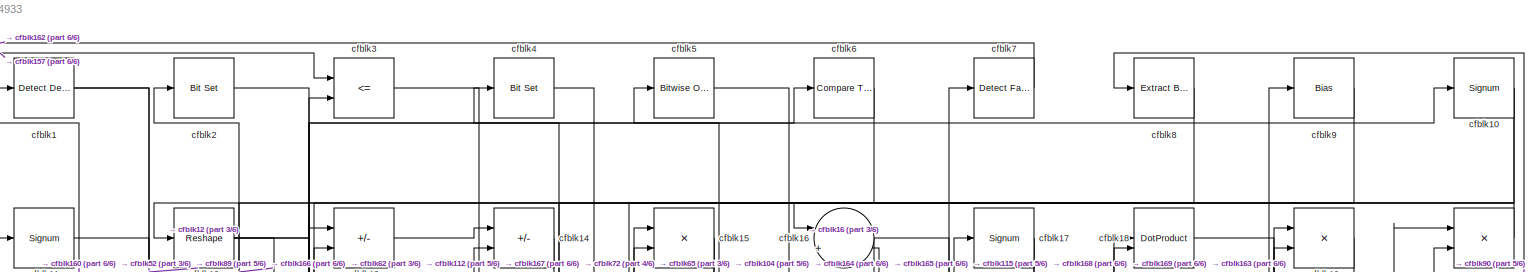
[diagram: root canvas - part 1/6, full width, top band]
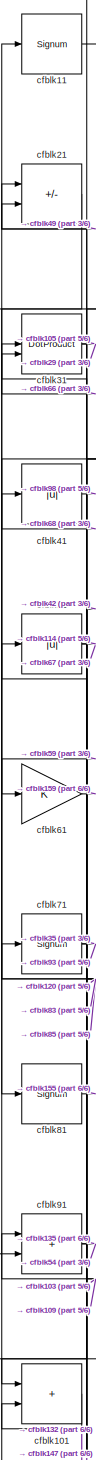
[diagram: root canvas - part 2/6, middle left region]
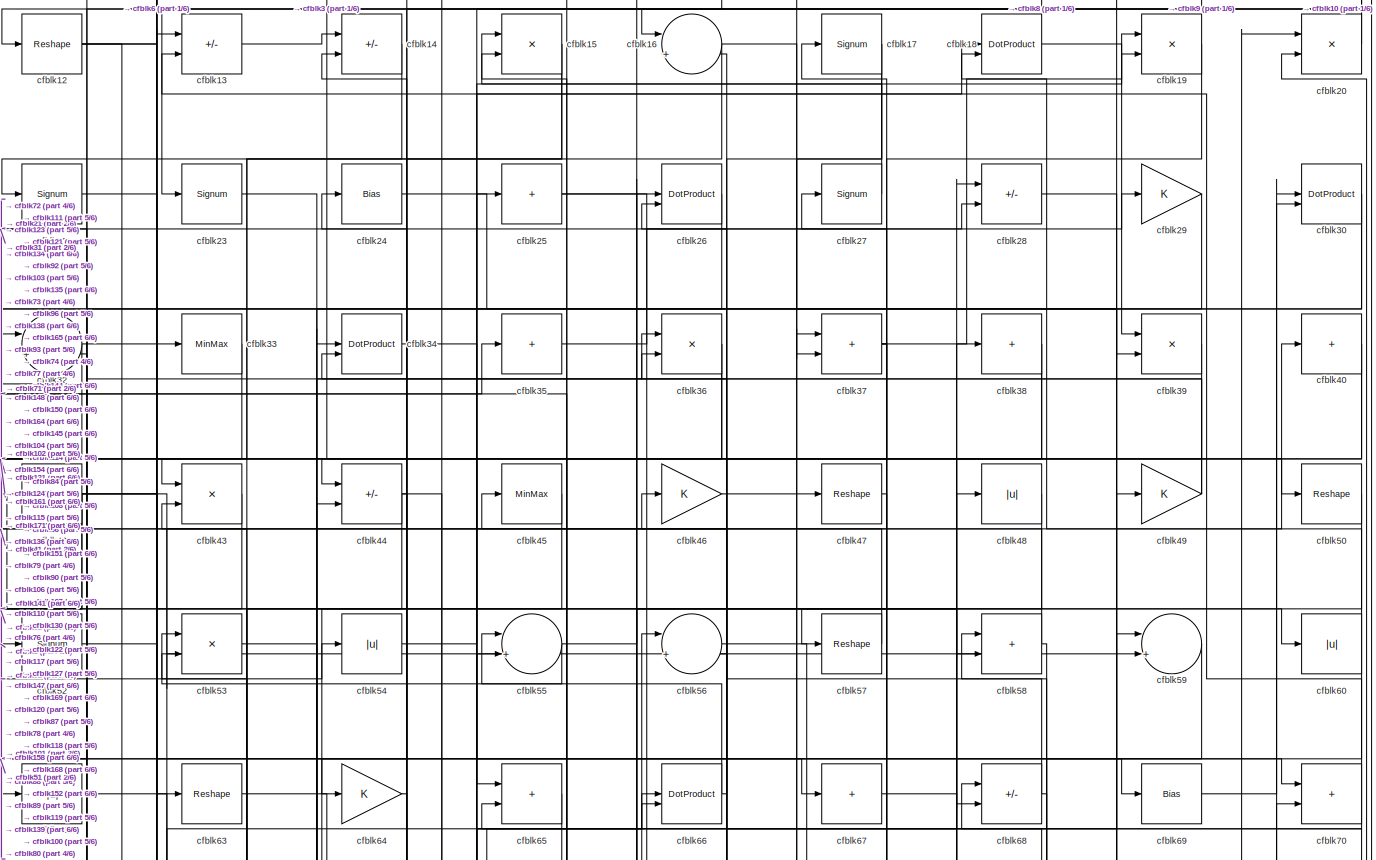
[diagram: root canvas - part 3/6, full width, top band]
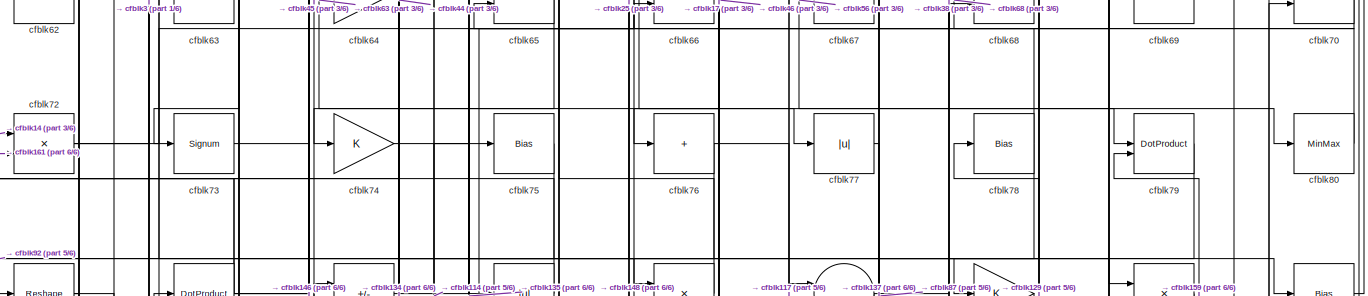
[diagram: root canvas - part 4/6, full width, middle band]
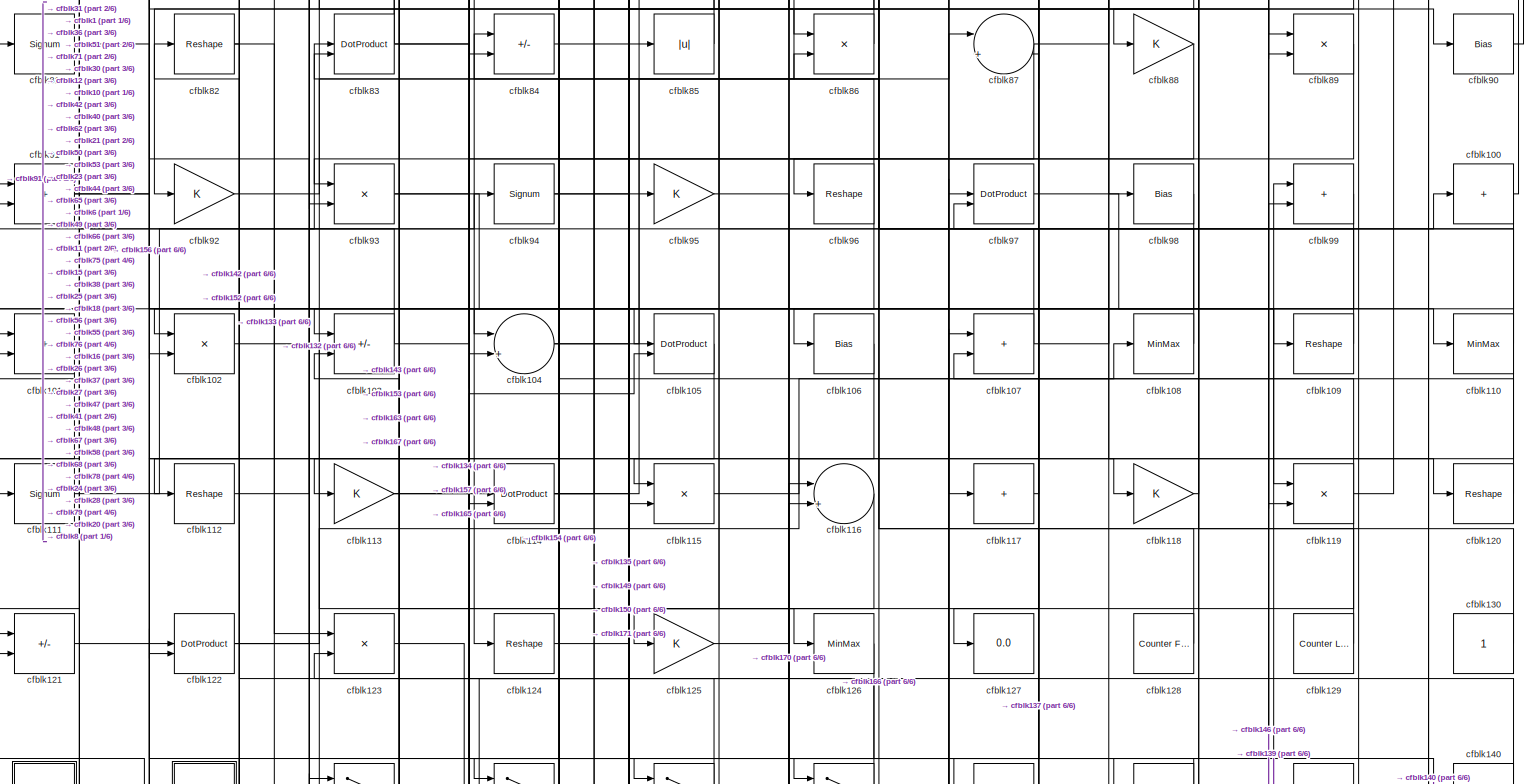
[diagram: root canvas - part 5/6, full width, middle band]
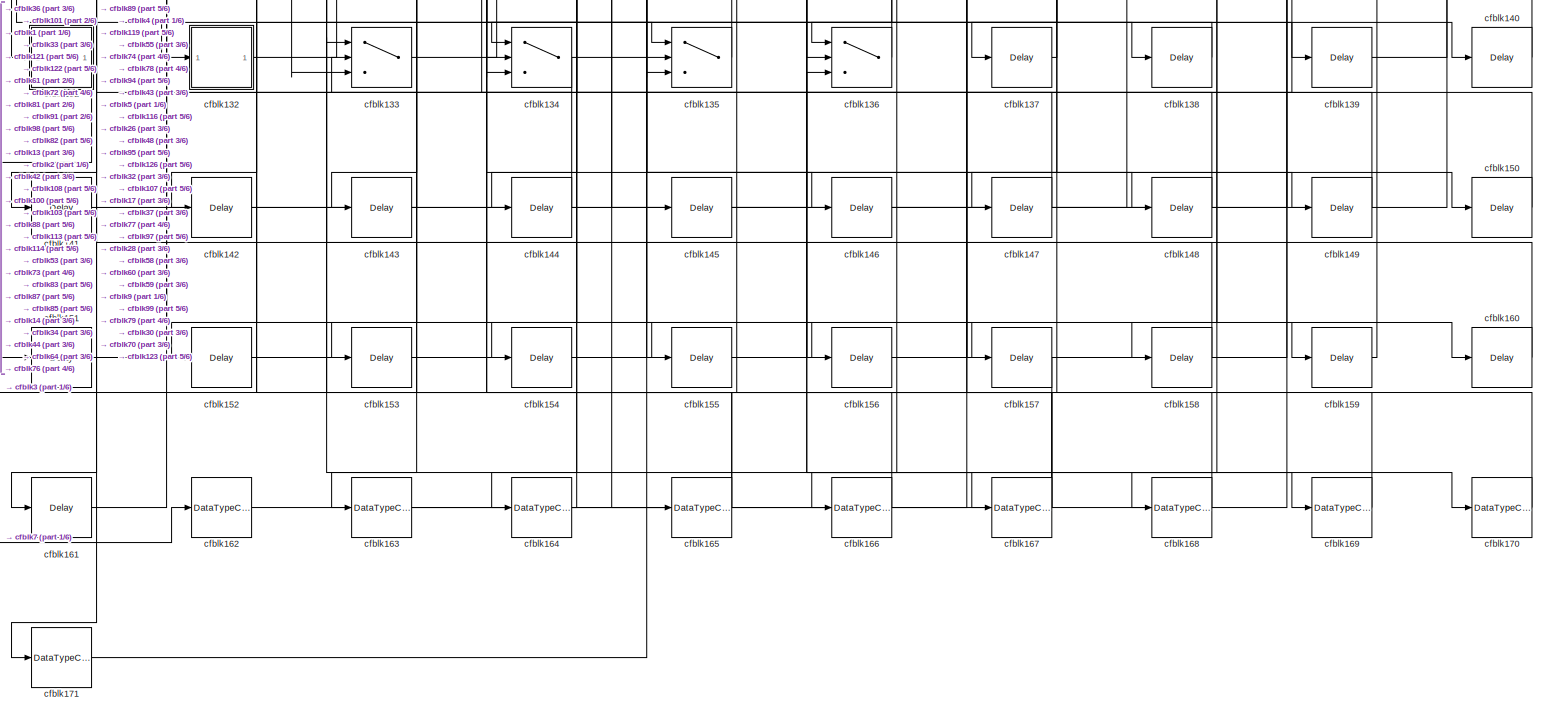
[diagram: root canvas - part 6/6, full width, bottom band]
MODEL slx_ee88b7634933
KIND model
CONFIG AbsTol = auto
CONFIG EnableMultiTasking = off
CONFIG FixedStep = auto
CONFIG MaxStep = auto
CONFIG MinStep = auto
CONFIG RelTol = 1e-3
CONFIG SampleTimeConstraint = Unconstrained
CONFIG SolverName = VariableStepAuto
CONFIG StartTime = 0.0
CONFIG StopTime = 10.0
BLOCK [Reference] cfblk1  REF=simulink/Logic and Bit
Operations/Detect
Decrease
  LibrarySourceBlock = hdlsllib/Logic and Bit\nOperations/Detect\nDecrease
  SourceBlock = simulink/Logic and Bit\nOperations/Detect\nDecrease
  SourceType = Detect Decrease
BLOCK [Signum] cfblk10
BLOCK [Sum] cfblk100
  IconShape = rectangular
  Inputs = +
BLOCK [Sum] cfblk101
  IconShape = rectangular
BLOCK [Product] cfblk102
  Inputs = */
  RndMeth = Zero
  SaturateOnIntegerOverflow = on
BLOCK [Sum] cfblk103
  IconShape = rectangular
  Inputs = +-
BLOCK [Sum] cfblk104
  Inputs = |++
BLOCK [DotProduct] cfblk105
  OutDataTypeStr = Inherit: Inherit via internal rule
BLOCK [Bias] cfblk106
  Bias = 0.0
  SaturateOnIntegerOverflow = off
BLOCK [Sum] cfblk107
  IconShape = rectangular
BLOCK [MinMax] cfblk108
BLOCK [Reshape] cfblk109
BLOCK [Signum] cfblk11
BLOCK [MinMax] cfblk110
BLOCK [Signum] cfblk111
BLOCK [Reshape] cfblk112
BLOCK [Gain] cfblk113
BLOCK [DotProduct] cfblk114
  OutDataTypeStr = Inherit: Inherit via internal rule
BLOCK [Product] cfblk115
  Inputs = */
  RndMeth = Zero
  SaturateOnIntegerOverflow = on
BLOCK [Sum] cfblk116
  Inputs = |++
BLOCK [Sum] cfblk117
  IconShape = rectangular
  Inputs = +
BLOCK [Gain] cfblk118
BLOCK [Product] cfblk119
  Inputs = */
  RndMeth = Zero
  SaturateOnIntegerOverflow = on
BLOCK [Reshape] cfblk12
BLOCK [Reshape] cfblk120
BLOCK [Sum] cfblk121
  IconShape = rectangular
  Inputs = +-
BLOCK [DotProduct] cfblk122
  OutDataTypeStr = Inherit: Inherit via internal rule
BLOCK [Product] cfblk123
  Inputs = */
  RndMeth = Zero
  SaturateOnIntegerOverflow = on
BLOCK [Reshape] cfblk124
BLOCK [Gain] cfblk125
BLOCK [MinMax] cfblk126
BLOCK [Display] cfblk127
  Decimation = 1
BLOCK [Reference] cfblk128  REF=hdlsllib/Sources/Counter
Free-Running
  SourceBlock = hdlsllib/Sources/Counter\nFree-Running
  SourceType = Counter Free-Running
BLOCK [Reference] cfblk129  REF=hdlsllib/Sources/Counter
Limited
  SourceBlock = hdlsllib/Sources/Counter\nLimited
  SourceType = Counter Limited
BLOCK [Sum] cfblk13
  IconShape = rectangular
  Inputs = +-
BLOCK [Constant] cfblk130
  SampleTime = -1
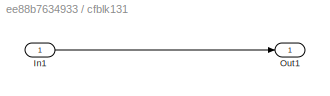
BLOCK [SubSystem] cfblk131
  LibrarySourceBlock = hdlsllib/Ports &\nSubsystems/Subsystem
BLOCK [Inport] cfblk131/In1
BLOCK [Outport] cfblk131/Out1
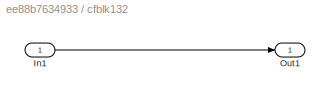
BLOCK [SubSystem] cfblk132
  LibrarySourceBlock = hdlsllib/Ports &\nSubsystems/Subsystem
BLOCK [Inport] cfblk132/In1
BLOCK [Outport] cfblk132/Out1
BLOCK [Switch] cfblk133
  InputSameDT = off
  SaturateOnIntegerOverflow = off
BLOCK [Switch] cfblk134
  InputSameDT = off
  SaturateOnIntegerOverflow = off
BLOCK [Switch] cfblk135
  InputSameDT = off
  SaturateOnIntegerOverflow = off
BLOCK [Switch] cfblk136
  InputSameDT = off
  SaturateOnIntegerOverflow = off
BLOCK [Delay] cfblk137
  InputPortMap = u0
  SampleTime = 1
BLOCK [Delay] cfblk138
  InputPortMap = u0
  SampleTime = 1
BLOCK [Delay] cfblk139
  InputPortMap = u0
  SampleTime = 1
BLOCK [Sum] cfblk14
  IconShape = rectangular
  Inputs = +-
BLOCK [Delay] cfblk140
  InputPortMap = u0
  SampleTime = 1
BLOCK [Delay] cfblk141
  InputPortMap = u0
  SampleTime = 1
BLOCK [Delay] cfblk142
  InputPortMap = u0
  SampleTime = 1
BLOCK [Delay] cfblk143
  InputPortMap = u0
  SampleTime = 1
BLOCK [Delay] cfblk144
  InputPortMap = u0
  SampleTime = 1
BLOCK [Delay] cfblk145
  InputPortMap = u0
  SampleTime = 1
BLOCK [Delay] cfblk146
  InputPortMap = u0
  SampleTime = 1
BLOCK [Delay] cfblk147
  InputPortMap = u0
  SampleTime = 1
BLOCK [Delay] cfblk148
  InputPortMap = u0
  SampleTime = 1
BLOCK [Delay] cfblk149
  InputPortMap = u0
  SampleTime = 1
BLOCK [Product] cfblk15
  Inputs = */
  RndMeth = Zero
  SaturateOnIntegerOverflow = on
BLOCK [Delay] cfblk150
  InputPortMap = u0
  SampleTime = 1
BLOCK [Delay] cfblk151
  InputPortMap = u0
  SampleTime = 1
BLOCK [Delay] cfblk152
  InputPortMap = u0
  SampleTime = 1
BLOCK [Delay] cfblk153
  InputPortMap = u0
  SampleTime = 1
BLOCK [Delay] cfblk154
  InputPortMap = u0
  SampleTime = 1
BLOCK [Delay] cfblk155
  InputPortMap = u0
  SampleTime = 1
BLOCK [Delay] cfblk156
  InputPortMap = u0
  SampleTime = 1
BLOCK [Delay] cfblk157
  InputPortMap = u0
  SampleTime = 1
BLOCK [Delay] cfblk158
  InputPortMap = u0
  SampleTime = 1
BLOCK [Delay] cfblk159
  InputPortMap = u0
  SampleTime = 1
BLOCK [Sum] cfblk16
  Inputs = |++
BLOCK [Delay] cfblk160
  InputPortMap = u0
  SampleTime = 1
BLOCK [Delay] cfblk161
  InputPortMap = u0
  SampleTime = 1
BLOCK [DataTypeConversion] cfblk162
  OutDataTypeStr = uint8
  RndMeth = Floor
  SaturateOnIntegerOverflow = off
BLOCK [DataTypeConversion] cfblk163
  OutDataTypeStr = uint8
  RndMeth = Floor
  SaturateOnIntegerOverflow = off
BLOCK [DataTypeConversion] cfblk164
  OutDataTypeStr = boolean
  RndMeth = Floor
  SaturateOnIntegerOverflow = off
BLOCK [DataTypeConversion] cfblk165
  RndMeth = Floor
  SaturateOnIntegerOverflow = off
BLOCK [DataTypeConversion] cfblk166
  OutDataTypeStr = boolean
  RndMeth = Floor
  SaturateOnIntegerOverflow = off
BLOCK [DataTypeConversion] cfblk167
  RndMeth = Floor
  SaturateOnIntegerOverflow = off
BLOCK [DataTypeConversion] cfblk168
  OutDataTypeStr = boolean
  RndMeth = Floor
  SaturateOnIntegerOverflow = off
BLOCK [DataTypeConversion] cfblk169
  OutDataTypeStr = uint8
  RndMeth = Floor
  SaturateOnIntegerOverflow = off
BLOCK [Signum] cfblk17
BLOCK [DataTypeConversion] cfblk170
  OutDataTypeStr = uint8
  RndMeth = Floor
  SaturateOnIntegerOverflow = off
BLOCK [DataTypeConversion] cfblk171
  OutDataTypeStr = uint8
  RndMeth = Floor
  SaturateOnIntegerOverflow = off
BLOCK [DotProduct] cfblk18
  OutDataTypeStr = Inherit: Inherit via internal rule
BLOCK [Product] cfblk19
  Inputs = */
  RndMeth = Zero
  SaturateOnIntegerOverflow = on
BLOCK [Reference] cfblk2  REF=simulink/Logic and Bit
Operations/Bit Set
  LibrarySourceBlock = hdlsllib/Logic and Bit\nOperations/Bit Set
  SourceBlock = simulink/Logic and Bit\nOperations/Bit Set
  SourceType = Bit Set
BLOCK [Product] cfblk20
  Inputs = */
  RndMeth = Zero
  SaturateOnIntegerOverflow = on
BLOCK [Sum] cfblk21
  IconShape = rectangular
  Inputs = +-
BLOCK [Signum] cfblk22
BLOCK [Signum] cfblk23
BLOCK [Bias] cfblk24
  Bias = 0.0
  SaturateOnIntegerOverflow = off
BLOCK [Sum] cfblk25
  IconShape = rectangular
  Inputs = +
BLOCK [DotProduct] cfblk26
  OutDataTypeStr = Inherit: Inherit via internal rule
BLOCK [Signum] cfblk27
BLOCK [Sum] cfblk28
  IconShape = rectangular
  Inputs = +-
BLOCK [Gain] cfblk29
BLOCK [RelationalOperator] cfblk3
  InputSameDT = off
  Operator = <=
  OutDataTypeStr = boolean
BLOCK [DotProduct] cfblk30
  OutDataTypeStr = Inherit: Inherit via internal rule
BLOCK [DotProduct] cfblk31
  OutDataTypeStr = Inherit: Inherit via internal rule
BLOCK [Sum] cfblk32
  Inputs = |++
BLOCK [MinMax] cfblk33
BLOCK [DotProduct] cfblk34
  OutDataTypeStr = Inherit: Inherit via internal rule
BLOCK [Sum] cfblk35
  IconShape = rectangular
  Inputs = +
BLOCK [Product] cfblk36
  Inputs = */
  RndMeth = Zero
  SaturateOnIntegerOverflow = on
BLOCK [Sum] cfblk37
  IconShape = rectangular
BLOCK [Sum] cfblk38
  IconShape = rectangular
  Inputs = +
BLOCK [Product] cfblk39
  Inputs = */
  RndMeth = Zero
  SaturateOnIntegerOverflow = on
BLOCK [Reference] cfblk4  REF=simulink/Logic and Bit
Operations/Bit Set
  LibrarySourceBlock = hdlsllib/Logic and Bit\nOperations/Bit Set
  SourceBlock = simulink/Logic and Bit\nOperations/Bit Set
  SourceType = Bit Set
BLOCK [Sum] cfblk40
  IconShape = rectangular
  Inputs = +
BLOCK [Abs] cfblk41
  SaturateOnIntegerOverflow = off
BLOCK [Bias] cfblk42
  Bias = 0.0
  SaturateOnIntegerOverflow = off
BLOCK [Product] cfblk43
  Inputs = */
  RndMeth = Zero
  SaturateOnIntegerOverflow = on
BLOCK [Sum] cfblk44
  IconShape = rectangular
  Inputs = +-
BLOCK [MinMax] cfblk45
BLOCK [Gain] cfblk46
BLOCK [Reshape] cfblk47
BLOCK [Abs] cfblk48
  SaturateOnIntegerOverflow = off
BLOCK [Gain] cfblk49
BLOCK [Reference] cfblk5  REF=simulink/Logic and Bit
Operations/Bitwise
Operator
  LibrarySourceBlock = hdlsllib/Logic and Bit\nOperations/Bitwise\nOperator
  SourceBlock = simulink/Logic and Bit\nOperations/Bitwise\nOperator
  SourceType = Bitwise Operator
BLOCK [Reshape] cfblk50
BLOCK [Abs] cfblk51
  SaturateOnIntegerOverflow = off
BLOCK [Signum] cfblk52
BLOCK [Product] cfblk53
  Inputs = */
  RndMeth = Zero
  SaturateOnIntegerOverflow = on
BLOCK [Abs] cfblk54
  SaturateOnIntegerOverflow = off
BLOCK [Sum] cfblk55
  Inputs = |++
BLOCK [Sum] cfblk56
  Inputs = |++
BLOCK [Reshape] cfblk57
BLOCK [Sum] cfblk58
  IconShape = rectangular
BLOCK [Sum] cfblk59
  Inputs = |++
BLOCK [Reference] cfblk6  REF=hdlsllib/Logic and Bit
Operations/Compare
To Zero
  SourceBlock = hdlsllib/Logic and Bit\nOperations/Compare\nTo Zero
  SourceType = Compare To Zero
BLOCK [Abs] cfblk60
  SaturateOnIntegerOverflow = off
BLOCK [Gain] cfblk61
BLOCK [Abs] cfblk62
  SaturateOnIntegerOverflow = off
BLOCK [Reshape] cfblk63
BLOCK [Gain] cfblk64
BLOCK [Sum] cfblk65
  IconShape = rectangular
BLOCK [DotProduct] cfblk66
  OutDataTypeStr = Inherit: Inherit via internal rule
BLOCK [Sum] cfblk67
  IconShape = rectangular
  Inputs = +
BLOCK [Sum] cfblk68
  IconShape = rectangular
  Inputs = +-
BLOCK [Bias] cfblk69
  Bias = 0.0
  SaturateOnIntegerOverflow = off
BLOCK [Reference] cfblk7  REF=hdlsllib/Logic and Bit
Operations/Detect Fall
Nonpositive
  SourceBlock = hdlsllib/Logic and Bit\nOperations/Detect Fall\nNonpositive
  SourceType = Detect Fall Nonpositive
BLOCK [Sum] cfblk70
  IconShape = rectangular
BLOCK [Signum] cfblk71
BLOCK [Product] cfblk72
  Inputs = */
  RndMeth = Zero
  SaturateOnIntegerOverflow = on
BLOCK [Signum] cfblk73
BLOCK [Gain] cfblk74
BLOCK [Bias] cfblk75
  Bias = 0.0
  SaturateOnIntegerOverflow = off
BLOCK [Sum] cfblk76
  IconShape = rectangular
  Inputs = +
BLOCK [Abs] cfblk77
  SaturateOnIntegerOverflow = off
BLOCK [Bias] cfblk78
  Bias = 0.0
  SaturateOnIntegerOverflow = off
BLOCK [DotProduct] cfblk79
  OutDataTypeStr = Inherit: Inherit via internal rule
BLOCK [Reference] cfblk8  REF=simulink/Logic and Bit
Operations/Extract Bits
  LibrarySourceBlock = hdlsllib/Logic and Bit\nOperations/Extract Bits
  SourceBlock = simulink/Logic and Bit\nOperations/Extract Bits
  SourceType = Extract Bits
BLOCK [MinMax] cfblk80
BLOCK [Signum] cfblk81
BLOCK [Reshape] cfblk82
BLOCK [DotProduct] cfblk83
  OutDataTypeStr = Inherit: Inherit via internal rule
BLOCK [Sum] cfblk84
  IconShape = rectangular
  Inputs = +-
BLOCK [Abs] cfblk85
  SaturateOnIntegerOverflow = off
BLOCK [Product] cfblk86
  Inputs = */
  RndMeth = Zero
  SaturateOnIntegerOverflow = on
BLOCK [Sum] cfblk87
  Inputs = |++
BLOCK [Gain] cfblk88
BLOCK [Product] cfblk89
  Inputs = */
  RndMeth = Zero
  SaturateOnIntegerOverflow = on
BLOCK [Bias] cfblk9
  Bias = 0.0
  SaturateOnIntegerOverflow = off
BLOCK [Bias] cfblk90
  Bias = 0.0
  SaturateOnIntegerOverflow = off
BLOCK [Sum] cfblk91
  IconShape = rectangular
BLOCK [Gain] cfblk92
BLOCK [Product] cfblk93
  Inputs = */
  RndMeth = Zero
  SaturateOnIntegerOverflow = on
BLOCK [Signum] cfblk94
BLOCK [Gain] cfblk95
BLOCK [Reshape] cfblk96
BLOCK [DotProduct] cfblk97
  OutDataTypeStr = Inherit: Inherit via internal rule
BLOCK [Bias] cfblk98
  Bias = 0.0
  SaturateOnIntegerOverflow = off
BLOCK [Sum] cfblk99
  IconShape = rectangular
NET cfblk100:1 -> cfblk153:1, cfblk20:2
LINE cfblk101:1 -> cfblk132:1
LINE cfblk102:1 -> cfblk126:1
NET cfblk103:1 -> cfblk31:2, cfblk44:2
NET cfblk104:1 -> cfblk18:2, cfblk56:1
LINE cfblk105:1 -> cfblk122:2
LINE cfblk106:1 -> cfblk113:1
NET cfblk107:1 -> cfblk100:1, cfblk26:2
LINE cfblk108:1 -> cfblk15:2
LINE cfblk109:1 -> cfblk91:1
NET cfblk10:1 -> cfblk115:2, cfblk62:1
NET cfblk110:1 -> cfblk125:1, cfblk56:2, cfblk86:2
LINE cfblk111:1 -> cfblk83:1
LINE cfblk112:1 -> cfblk10:1
NET cfblk113:1 -> cfblk105:2, cfblk157:1
NET cfblk114:1 -> cfblk49:1, cfblk66:2, cfblk75:1
LINE cfblk115:1 -> cfblk118:1
LINE cfblk116:1 -> cfblk163:1
LINE cfblk117:1 -> cfblk27:1
LINE cfblk118:1 -> cfblk58:1
NET cfblk119:1 -> cfblk107:2, cfblk135:2, cfblk20:1
LINE cfblk11:1 -> cfblk109:1
LINE cfblk120:1 -> cfblk71:1
LINE cfblk121:1 -> cfblk156:1
NET cfblk122:1 -> cfblk37:1, cfblk94:1
LINE cfblk123:1 -> cfblk99:1
LINE cfblk124:1 -> cfblk25:1
LINE cfblk125:1 -> cfblk116:2
LINE cfblk126:1 -> cfblk152:1
LINE cfblk128:1 -> cfblk84:1
LINE cfblk129:1 -> cfblk78:1
NET cfblk12:1 -> cfblk123:1, cfblk63:1, cfblk6:1
LINE cfblk130:1 -> cfblk16:2
LINE cfblk131/In1:1 -> cfblk131/Out1:1
LINE cfblk131:1 -> cfblk151:1
LINE cfblk132/In1:1 -> cfblk132/Out1:1
LINE cfblk132:1 -> cfblk108:1
LINE cfblk133:1 -> cfblk85:1
NET cfblk134:1 -> cfblk133:2, cfblk160:1
LINE cfblk135:1 -> cfblk43:2
LINE cfblk136:1 -> cfblk32:1
LINE cfblk137:1 -> cfblk97:2
LINE cfblk138:1 -> cfblk136:1
LINE cfblk139:1 -> cfblk70:2
LINE cfblk13:1 -> cfblk14:1
LINE cfblk140:1 -> cfblk123:2
LINE cfblk141:1 -> cfblk28:1
LINE cfblk142:1 -> cfblk116:1
LINE cfblk143:1 -> cfblk83:2
LINE cfblk144:1 -> cfblk32:2
LINE cfblk145:1 -> cfblk30:2
LINE cfblk146:1 -> cfblk99:2
LINE cfblk147:1 -> cfblk101:2
LINE cfblk148:1 -> cfblk34:2
LINE cfblk149:1 -> cfblk122:1
LINE cfblk14:1 -> cfblk72:1
LINE cfblk150:1 -> cfblk14:2
LINE cfblk151:1 -> cfblk26:1
LINE cfblk152:1 -> cfblk59:1
LINE cfblk153:1 -> cfblk107:1
LINE cfblk154:1 -> cfblk55:2
LINE cfblk155:1 -> cfblk136:3
LINE cfblk156:1 -> cfblk87:1
LINE cfblk157:1 -> cfblk3:1
LINE cfblk158:1 -> cfblk13:1
LINE cfblk159:1 -> cfblk79:2
NET cfblk15:1 -> cfblk22:1, cfblk64:1
LINE cfblk160:1 -> cfblk1:1
LINE cfblk161:1 -> cfblk72:2
LINE cfblk162:1 -> cfblk9:1
LINE cfblk163:1 -> cfblk7:1
LINE cfblk164:1 -> cfblk4:1
NET cfblk165:1 -> cfblk114:1, cfblk34:1
LINE cfblk166:1 -> cfblk2:1
NET cfblk167:1 -> cfblk103:2, cfblk133:1, cfblk82:1
LINE cfblk168:1 -> cfblk5:1
LINE cfblk169:1 -> cfblk17:1
NET cfblk16:1 -> cfblk39:2, cfblk43:1
LINE cfblk170:1 -> cfblk97:1
LINE cfblk171:1 -> cfblk95:1
NET cfblk17:1 -> cfblk37:2, cfblk76:1
LINE cfblk18:1 -> cfblk39:1
LINE cfblk19:1 -> cfblk44:1
NET cfblk1:1 -> cfblk52:1, cfblk89:2
LINE cfblk20:1 -> cfblk23:1
LINE cfblk21:1 -> cfblk81:1
LINE cfblk22:1 -> cfblk50:1
LINE cfblk23:1 -> cfblk104:2
LINE cfblk24:1 -> cfblk89:1
NET cfblk25:1 -> cfblk79:1, cfblk90:1
LINE cfblk26:1 -> cfblk84:2
LINE cfblk27:1 -> cfblk15:1
LINE cfblk28:1 -> cfblk119:2
LINE cfblk29:1 -> cfblk91:2
LINE cfblk2:1 -> cfblk167:1
NET cfblk30:1 -> cfblk102:1, cfblk111:1
NET cfblk31:1 -> cfblk105:1, cfblk29:1
NET cfblk32:1 -> cfblk161:1, cfblk33:1
LINE cfblk33:1 -> cfblk171:1
LINE cfblk34:1 -> cfblk69:1
LINE cfblk35:1 -> cfblk28:2
NET cfblk36:1 -> cfblk102:2, cfblk131:1
NET cfblk37:1 -> cfblk147:1, cfblk19:2, cfblk57:1
NET cfblk38:1 -> cfblk103:1, cfblk115:1
LINE cfblk39:1 -> cfblk68:2
LINE cfblk3:1 -> cfblk65:1
NET cfblk40:1 -> cfblk106:1, cfblk96:1
LINE cfblk41:1 -> cfblk98:1
NET cfblk42:1 -> cfblk121:1, cfblk134:3, cfblk59:2, cfblk60:1, cfblk61:1
LINE cfblk43:1 -> cfblk141:1
NET cfblk44:1 -> cfblk144:1, cfblk145:1, cfblk73:1
LINE cfblk45:1 -> cfblk74:1
LINE cfblk46:1 -> cfblk47:1
LINE cfblk47:1 -> cfblk127:1
LINE cfblk48:1 -> cfblk136:2
NET cfblk49:1 -> cfblk21:1, cfblk24:1
LINE cfblk4:1 -> cfblk165:1
LINE cfblk50:1 -> cfblk93:1
NET cfblk51:1 -> cfblk114:2, cfblk67:1
LINE cfblk52:1 -> cfblk70:1
LINE cfblk53:1 -> cfblk138:1
LINE cfblk54:1 -> cfblk19:1
NET cfblk55:1 -> cfblk53:2, cfblk58:2
LINE cfblk56:1 -> cfblk80:1
LINE cfblk57:1 -> cfblk45:1
NET cfblk58:1 -> cfblk168:1, cfblk42:1
LINE cfblk59:1 -> cfblk101:1
LINE cfblk5:1 -> cfblk169:1
NET cfblk60:1 -> cfblk158:1, cfblk18:1
LINE cfblk61:1 -> cfblk159:1
LINE cfblk62:1 -> cfblk86:1
LINE cfblk63:1 -> cfblk77:1
LINE cfblk64:1 -> cfblk164:1
LINE cfblk65:1 -> cfblk124:1
NET cfblk66:1 -> cfblk31:1, cfblk36:1
LINE cfblk67:1 -> cfblk120:1
NET cfblk68:1 -> cfblk41:1, cfblk88:1
LINE cfblk69:1 -> cfblk30:1
LINE cfblk6:1 -> cfblk104:1
NET cfblk70:1 -> cfblk13:2, cfblk65:2
NET cfblk71:1 -> cfblk35:1, cfblk93:2
NET cfblk72:1 -> cfblk38:1, cfblk3:2
LINE cfblk73:1 -> cfblk146:1
LINE cfblk74:1 -> cfblk148:1
LINE cfblk75:1 -> cfblk92:1
NET cfblk76:1 -> cfblk117:1, cfblk134:1
LINE cfblk77:1 -> cfblk137:1
NET cfblk78:1 -> cfblk135:3, cfblk46:1
LINE cfblk79:1 -> cfblk87:2
LINE cfblk7:1 -> cfblk162:1
LINE cfblk80:1 -> cfblk68:1
LINE cfblk81:1 -> cfblk155:1
NET cfblk82:1 -> cfblk112:1, cfblk133:3
NET cfblk83:1 -> cfblk139:1, cfblk140:1, cfblk21:2, cfblk51:1
LINE cfblk84:1 -> cfblk66:1
LINE cfblk85:1 -> cfblk11:1
LINE cfblk86:1 -> cfblk55:1
NET cfblk87:1 -> cfblk134:2, cfblk48:1
LINE cfblk88:1 -> cfblk143:1
LINE cfblk89:1 -> cfblk154:1
LINE cfblk8:1 -> cfblk16:1
LINE cfblk90:1 -> cfblk8:1
NET cfblk91:1 -> cfblk135:1, cfblk54:1
LINE cfblk92:1 -> cfblk40:1
NET cfblk93:1 -> cfblk119:1, cfblk36:2
NET cfblk94:1 -> cfblk149:1, cfblk150:1
LINE cfblk95:1 -> cfblk170:1
NET cfblk96:1 -> cfblk121:2, cfblk53:1
LINE cfblk97:1 -> cfblk110:1
LINE cfblk98:1 -> cfblk142:1
LINE cfblk99:1 -> cfblk166:1
LINE cfblk9:1 -> cfblk12:1
note: NET lines group one-source signal fan-out (src -> all destinations, sorted); 1:1 wires keep LINE
